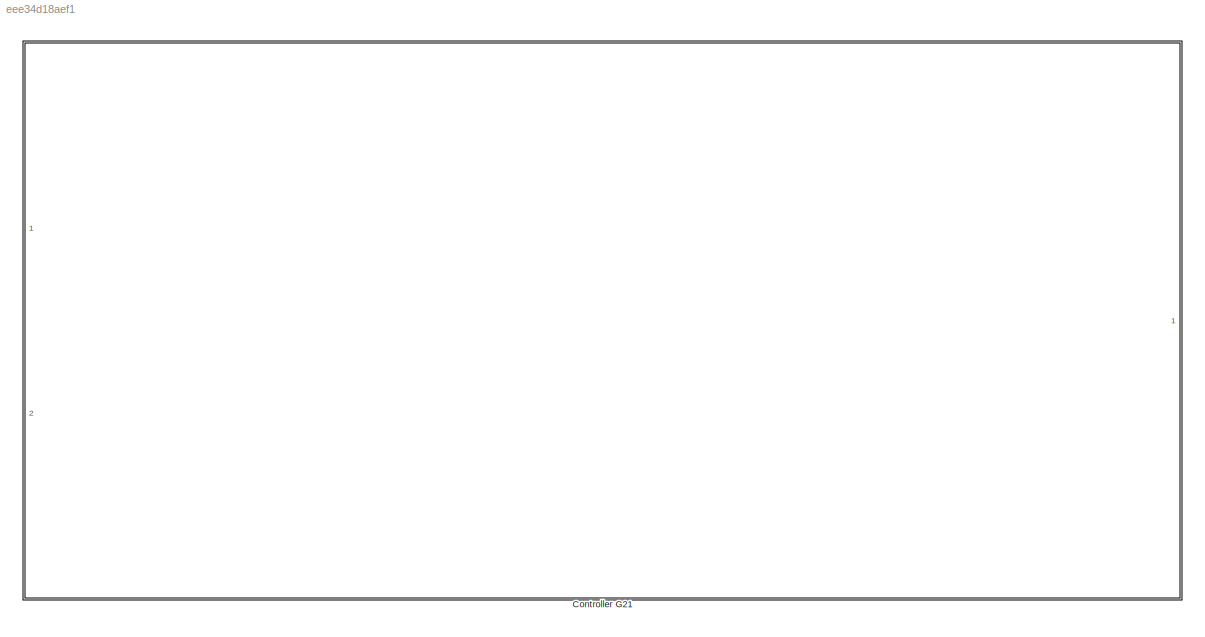
MODEL slx_eee34d18aef1
KIND model
CONFIG AbsTol = auto
CONFIG EnableMultiTasking = off
CONFIG FixedStep = auto
CONFIG MaxStep = auto
CONFIG MinStep = auto
CONFIG RelTol = 1e-3
CONFIG SampleTimeConstraint = Unconstrained
CONFIG SolverName = VariableStepAuto
CONFIG StartTime = 0.0
CONFIG StopTime = 10.0
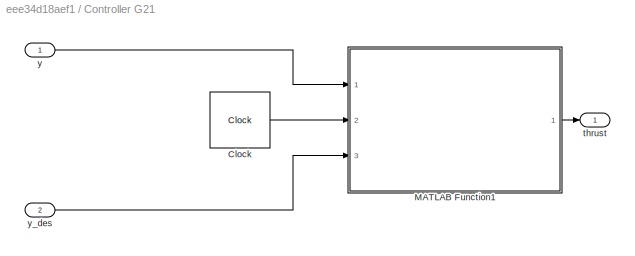
BLOCK [SubSystem] Controller G21
  Ports = [2, 1]
  RequestExecContextInheritance = off
BLOCK [Clock] Controller G21/Clock
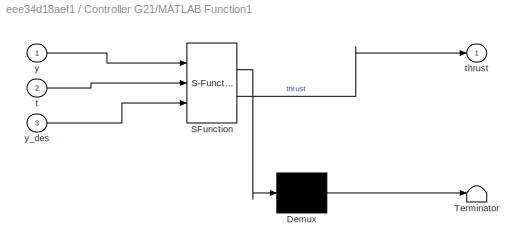
BLOCK [SubSystem] Controller G21/MATLAB Function1
  ErrorFcn = Stateflow.Translate.translate
  PermitHierarchicalResolution = ExplicitOnly
  Ports = [3, 1]
  RequestExecContextInheritance = off
  SFBlockType = MATLAB Function
  TreatAsAtomicUnit = on
BLOCK [Demux] Controller G21/MATLAB Function1/ Demux 
  Outputs = 1
  Ports = [1, 1]
BLOCK [S-Function] Controller G21/MATLAB Function1/ SFunction 
  EnableBusSupport = on
  FunctionName = sf_sfun
  PortCounts = [3 2]
  Ports = [3, 2]
  SFcnIsStateOwnerBlock = off
  SFunctionDeploymentMode = off
  Tag = Stateflow S-Function 1
BLOCK [Terminator] Controller G21/MATLAB Function1/ Terminator 
BLOCK [Inport] Controller G21/MATLAB Function1/t
  Port = 2
BLOCK [Outport] Controller G21/MATLAB Function1/thrust
BLOCK [Inport] Controller G21/MATLAB Function1/y
BLOCK [Inport] Controller G21/MATLAB Function1/y_des
  Port = 3
BLOCK [Outport] Controller G21/thrust
BLOCK [Inport] Controller G21/y
BLOCK [Inport] Controller G21/y_des
  Port = 2
LINE Controller G21/Clock:1 -> Controller G21/MATLAB Function1:2
LINE Controller G21/MATLAB Function1:1 -> Controller G21/thrust:1
LINE Controller G21/y:1 -> Controller G21/MATLAB Function1:1
LINE Controller G21/y_des:1 -> Controller G21/MATLAB Function1:3
CHART Controller G21/MATLAB Function1 states=1 transitions=1
  STATE_LABEL 'eML_blk_kernel()'
  STATE_LABEL 'SCRIPT:\nfunction thrust = lqr_controller(y, t, y_des)\n    persistent y_prev y_prev_prev t_prev v_est thrust_est\n    \n    %% Persistent vars initialisation\n    if isempty(y_prev)\n        y_prev = -1;\n        y_prev_prev = 0;\n        t_prev = -1;\n        v_est = 0;\n        thrust_est = 0;\n        \n        thrust = 0;\n        return\n    end\n    \n    %% Constants\n    K = [0.951141031602812, 17.5829247...<+684ch>'
CHART  states=0 transitions=0
